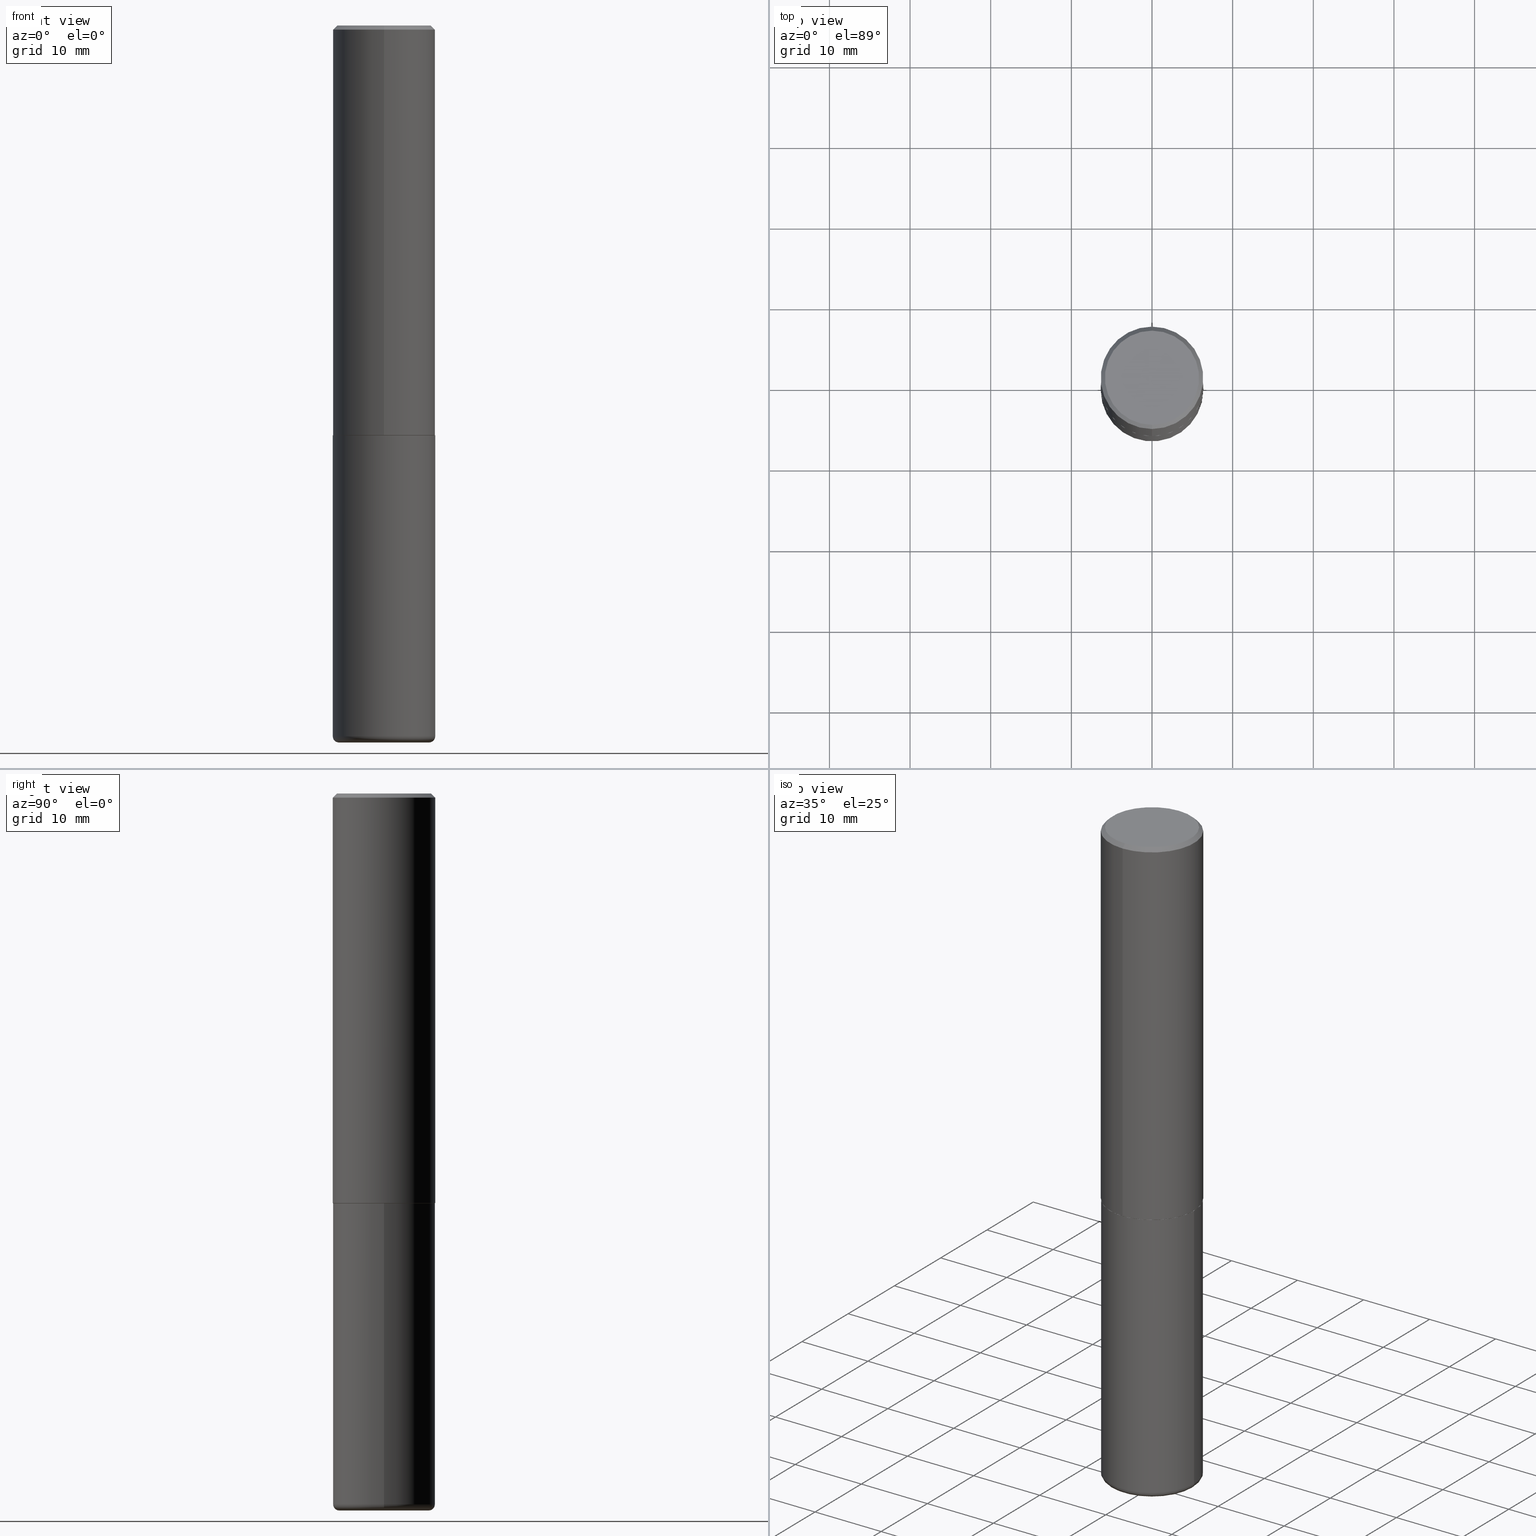
[diagram: canonical four-view strip — front | top / right | iso, engineering-drawing reading convention]
A machine part, canonical four-view strip (front | top / right | iso — engineering-drawing reading convention). The complete STEP part file that produces these views, byte-faithful:
ISO-10303-21;
HEADER;
FILE_DESCRIPTION (( 'STEP AP203' ),
    '1' );
FILE_NAME ('77356.STEP',
    '2024-05-02T19:31:31',
    ( '' ),
    ( '' ),
    'SwSTEP 2.0',
    'SolidWorks 2023',
    '' );
FILE_SCHEMA (( 'CONFIG_CONTROL_DESIGN' ));
ENDSEC;

DATA;
#1 = CARTESIAN_POINT ( 'NONE',  ( 0.2200000000000000011, -1.365169203487669276E-14, -3.469999999999999751 ) ) ;
#2 = DIRECTION ( 'NONE',  ( 2.444078991372175283E-29, -3.493471632758652550E-15, -1.000000000000000000 ) ) ;
#3 = ORIENTED_EDGE ( 'NONE', *, *, #232, .F. ) ;
#4 = FACE_OUTER_BOUND ( 'NONE', #257, .T. ) ;
#5 = APPROVAL_DATE_TIME ( #170, #384 ) ;
#6 = AXIS2_PLACEMENT_3D ( 'NONE', #338, #182, #274 ) ;
#7 = PERSON_AND_ORGANIZATION ( #239, #183 ) ;
#8 = APPROVAL_PERSON_ORGANIZATION ( #396, #345, #105 ) ;
#9 = CYLINDRICAL_SURFACE ( 'NONE', #323, 0.2500000000000001110 ) ;
#10 = PRODUCT_DEFINITION ( 'UNKNOWN', '', #52, #90 ) ;
#11 = SECURITY_CLASSIFICATION_LEVEL ( 'unclassified' ) ;
#12 = PERSON_AND_ORGANIZATION ( #239, #183 ) ;
#13 = DIRECTION ( 'NONE',  ( -6.982962677686265133E-15, -1.000000000000000000, 3.500180241882336472E-15 ) ) ;
#14 = ADVANCED_FACE ( 'NONE', ( #104 ), #119, .T. ) ;
#15 = DATE_AND_TIME ( #241, #35 ) ;
#16 = CIRCLE ( 'NONE', #259, 0.2500000000000000555 ) ;
#17 = FACE_OUTER_BOUND ( 'NONE', #253, .T. ) ;
#18 = VERTEX_POINT ( 'NONE', #140 ) ;
#19 = CARTESIAN_POINT ( 'NONE',  ( -0.2499999999999998612, -1.033908340638546551E-14, -3.469999999999999751 ) ) ;
#20 = CARTESIAN_POINT ( 'NONE',  ( 0.2500000000000000000, -8.728703347107857054E-15, -2.000000000000000000 ) ) ;
#21 = AXIS2_PLACEMENT_3D ( 'NONE', #301, #145, #46 ) ;
#22 = AXIS2_PLACEMENT_3D ( 'NONE', #198, #293, #314 ) ;
#23 = EDGE_CURVE ( 'NONE', #88, #288, #275, .T. ) ;
#24 = DIRECTION ( 'NONE',  ( -6.982962677686265922E-15, -1.000000000000000000, 3.493471632758652550E-15 ) ) ;
#25 = DIRECTION ( 'NONE',  ( -1.000000000000000000, 6.982962677686265922E-15, -4.876176775795935793E-29 ) ) ;
#26 = EDGE_LOOP ( 'NONE', ( #282, #285, #302, #393 ) ) ;
#27 = CARTESIAN_POINT ( 'NONE',  ( 4.888157982744351127E-29, -6.986943265517304311E-15, -2.000000000000000000 ) ) ;
#28 = AXIS2_PLACEMENT_3D ( 'NONE', #118, #78, #247 ) ;
#29 = ORIENTED_EDGE ( 'NONE', *, *, #65, .T. ) ;
#30 = FACE_OUTER_BOUND ( 'NONE', #63, .T. ) ;
#31 = CARTESIAN_POINT ( 'NONE',  ( 4.888157982744351127E-29, -6.986943265517304311E-15, -2.000000000000000000 ) ) ;
#32 = VERTEX_POINT ( 'NONE', #175 ) ;
#33 = ORIENTED_EDGE ( 'NONE', *, *, #233, .T. ) ;
#34 = PERSON_AND_ORGANIZATION_ROLE ( 'classification_officer' ) ;
#35 = LOCAL_TIME ( 15, 31, 31.00000000000000000, #354 ) ;
#36 = PLANE ( 'NONE',  #318 ) ;
#37 = ORIENTED_EDGE ( 'NONE', *, *, #343, .T. ) ;
#38 = CALENDAR_DATE ( 2024, 2, 5 ) ;
#39 = DIRECTION ( 'NONE',  ( 1.000000000000000000, -6.982962677686269866E-15, 0.000000000000000000 ) ) ;
#40 = ORIENTED_EDGE ( 'NONE', *, *, #147, .T. ) ;
#41 = APPROVAL_STATUS ( 'not_yet_approved' ) ;
#42 = CC_DESIGN_PERSON_AND_ORGANIZATION_ASSIGNMENT ( #12, #240, ( #387 ) ) ;
#43 = PERSON_AND_ORGANIZATION_ROLE ( 'creator' ) ;
#44 = DIRECTION ( 'NONE',  ( -2.444078991372175563E-29, 3.493471632758652550E-15, 1.000000000000000000 ) ) ;
#45 = CALENDAR_DATE ( 2024, 2, 5 ) ;
#46 = DIRECTION ( 'NONE',  ( 1.000000000000000000, -6.982962677686270655E-15, 4.883557194083114583E-29 ) ) ;
#47 = ORIENTED_EDGE ( 'NONE', *, *, #23, .T. ) ;
#48 = CARTESIAN_POINT ( 'NONE',  ( 1.462890209737923333E-28, -3.527941069746530409E-15, -3.499999999999999112 ) ) ;
#49 = EDGE_LOOP ( 'NONE', ( #245, #110, #128, #401 ) ) ;
#50 = CYLINDRICAL_SURFACE ( 'NONE', #237, 0.2500000000000000000 ) ;
#51 = DIRECTION ( 'NONE',  ( 1.000000000000000000, -6.982962677686262766E-15, 0.000000000000000000 ) ) ;
#52 = PRODUCT_DEFINITION_FORMATION_WITH_SPECIFIED_SOURCE ( 'ANY', '', #387, .NOT_KNOWN. ) ;
#53 = CARTESIAN_POINT ( 'NONE',  ( 8.485776757462424574E-29, -1.211544024578571439E-14, -3.469999999999999751 ) ) ;
#54 = EDGE_CURVE ( 'NONE', #18, #32, #94, .T. ) ;
#55 = CARTESIAN_POINT ( 'NONE',  ( -1.738757706743831360E-15, -0.2490000000000069935, -1.999999999999999112 ) ) ;
#56 = PLANE ( 'NONE',  #136 ) ;
#57 = CONICAL_SURFACE ( 'NONE', #418, 0.2500000000000000555, 0.7853981633974466137 ) ;
#58 = CARTESIAN_POINT ( 'NONE',  ( 4.888157982744351127E-29, -6.986943265517304311E-15, -2.000000000000000000 ) ) ;
#59 =( CONVERSION_BASED_UNIT ( 'INCH', #256 ) LENGTH_UNIT ( ) NAMED_UNIT ( #206 ) );
#60 = CALENDAR_DATE ( 2024, 2, 5 ) ;
#61 = DIRECTION ( 'NONE',  ( -2.444078991372175283E-29, 3.493471632758652550E-15, 1.000000000000000000 ) ) ;
#62 = DIRECTION ( 'NONE',  ( 6.982962677686265133E-15, 1.000000000000000000, -3.500180241882336472E-15 ) ) ;
#63 = EDGE_LOOP ( 'NONE', ( #146, #98, #83, #150 ) ) ;
#64 = ADVANCED_FACE ( 'NONE', ( #17 ), #234, .T. ) ;
#65 = EDGE_CURVE ( 'NONE', #292, #368, #159, .T. ) ;
#66 = APPROVAL_STATUS ( 'not_yet_approved' ) ;
#67 = DIRECTION ( 'NONE',  ( 1.000000000000000000, 0.000000000000000000, 0.000000000000000000 ) ) ;
#68 = CC_DESIGN_APPROVAL ( #384, ( #103 ) ) ;
#69 = DIRECTION ( 'NONE',  ( -6.982962677686266711E-15, -1.000000000000000000, 3.493471632758652550E-15 ) ) ;
#70 = CC_DESIGN_PERSON_AND_ORGANIZATION_ASSIGNMENT ( #320, #34, ( #103 ) ) ;
#71 = FACE_OUTER_BOUND ( 'NONE', #123, .T. ) ;
#72 = ORIENTED_EDGE ( 'NONE', *, *, #372, .F. ) ;
#73 = AXIS2_PLACEMENT_3D ( 'NONE', #332, #173, #392 ) ;
#74 = ADVANCED_FACE ( 'NONE', ( #71 ), #9, .T. ) ;
#75 = ORIENTED_EDGE ( 'NONE', *, *, #125, .F. ) ;
#76 = EDGE_CURVE ( 'NONE', #133, #288, #400, .T. ) ;
#77 = CYLINDRICAL_SURFACE ( 'NONE', #28, 0.2500000000000000000 ) ;
#78 = DIRECTION ( 'NONE',  ( -2.445468806185136597E-29, 3.491481338843145583E-15, 1.000000000000000000 ) ) ;
#79 = DIRECTION ( 'NONE',  ( -2.444078991372175563E-29, 3.493471632758652550E-15, 1.000000000000000000 ) ) ;
#80 = CLOSED_SHELL ( 'NONE', ( #188, #413, #200, #149, #14, #64 ) ) ;
#81 = EDGE_CURVE ( 'NONE', #194, #330, #16, .T. ) ;
#82 = FACE_OUTER_BOUND ( 'NONE', #26, .T. ) ;
#83 = ORIENTED_EDGE ( 'NONE', *, *, #217, .F. ) ;
#84 = DIRECTION ( 'NONE',  ( -2.445468806185136597E-29, 3.491481338843145583E-15, 1.000000000000000000 ) ) ;
#85 = UNCERTAINTY_MEASURE_WITH_UNIT (LENGTH_MEASURE( 1.000000000000000082E-05 ), #59, 'distance_accuracy_value', 'NONE');
#86 = VERTEX_POINT ( 'NONE', #142 ) ;
#87 = CARTESIAN_POINT ( 'NONE',  ( 0.000000000000000000, 0.000000000000000000, 0.000000000000000000 ) ) ;
#88 = VERTEX_POINT ( 'NONE', #20 ) ;
#89 = CARTESIAN_POINT ( 'NONE',  ( 8.559140821647976968E-29, -1.222018468595100619E-14, -3.499999999999999112 ) ) ;
#90 = DESIGN_CONTEXT ( 'detailed design', #386, 'design' ) ;
#91 =( LENGTH_UNIT ( ) NAMED_UNIT ( * ) SI_UNIT ( $, .METRE. ) );
#92 = EDGE_CURVE ( 'NONE', #178, #179, #366, .T. ) ;
#93 = ORIENTED_EDGE ( 'NONE', *, *, #343, .F. ) ;
#94 = CIRCLE ( 'NONE', #143, 0.2200000000000000011 ) ;
#95 = COORDINATED_UNIVERSAL_TIME_OFFSET ( 5, 0, .BEHIND. ) ;
#96 = VECTOR ( 'NONE', #151, 39.37007874015748143 ) ;
#97 = FACE_OUTER_BOUND ( 'NONE', #346, .T. ) ;
#98 = ORIENTED_EDGE ( 'NONE', *, *, #172, .T. ) ;
#99 = DIRECTION ( 'NONE',  ( 0.000000000000000000, 0.000000000000000000, 1.000000000000000000 ) ) ;
#100 = MECHANICAL_CONTEXT ( 'NONE', #272, 'mechanical' ) ;
#101 = DIRECTION ( 'NONE',  ( -1.000000000000000000, 6.982962677686265922E-15, -4.876176775795935793E-29 ) ) ;
#102 = APPROVAL_STATUS ( 'not_yet_approved' ) ;
#103 = SECURITY_CLASSIFICATION ( '', '', #11 ) ;
#104 = FACE_OUTER_BOUND ( 'NONE', #120, .T. ) ;
#105 = APPROVAL_ROLE ( '' ) ;
#106 = DIRECTION ( 'NONE',  ( -2.445468806185136597E-29, 3.491481338843145583E-15, 1.000000000000000000 ) ) ;
#107 = ORIENTED_EDGE ( 'NONE', *, *, #232, .T. ) ;
#108 = CARTESIAN_POINT ( 'NONE',  ( 4.888157982744373443E-31, -6.986943265517335816E-17, -0.02000000000000009062 ) ) ;
#109 = EDGE_CURVE ( 'NONE', #222, #88, #376, .T. ) ;
#110 = ORIENTED_EDGE ( 'NONE', *, *, #115, .T. ) ;
#111 = MANIFOLD_SOLID_BREP ( 'Body-Move/Copy2[1]', #80 ) ;
#112 = LOCAL_TIME ( 15, 31, 31.00000000000000000, #95 ) ;
#113 = DIRECTION ( 'NONE',  ( 7.105427357601001859E-15, 1.000000000000000000, -3.491481338843145583E-15 ) ) ;
#114 = DIRECTION ( 'NONE',  ( 1.000000000000000000, -6.982962677686266711E-15, 0.000000000000000000 ) ) ;
#115 = EDGE_CURVE ( 'NONE', #179, #368, #339, .T. ) ;
#116 = CARTESIAN_POINT ( 'NONE',  ( 4.890937612370273194E-29, -6.982962677686291165E-15, -2.000000000000000000 ) ) ;
#117 = CC_DESIGN_DATE_AND_TIME_ASSIGNMENT ( #138, #139, ( #10 ) ) ;
#118 = CARTESIAN_POINT ( 'NONE',  ( 0.000000000000000000, 0.000000000000000000, 0.000000000000000000 ) ) ;
#119 = TOROIDAL_SURFACE ( 'NONE', #21, 0.2200000000000000011, 0.02999999999999969705 ) ;
#120 = EDGE_LOOP ( 'NONE', ( #340, #167, #294, #187 ) ) ;
#121 = LINE ( 'NONE', #254, #96 ) ;
#122 = ORIENTED_EDGE ( 'NONE', *, *, #268, .F. ) ;
#123 = EDGE_LOOP ( 'NONE', ( #409, #379, #37, #322 ) ) ;
#124 = COORDINATED_UNIVERSAL_TIME_OFFSET ( 5, 0, .BEHIND. ) ;
#125 = EDGE_CURVE ( 'NONE', #86, #261, #176, .T. ) ;
#126 = CARTESIAN_POINT ( 'NONE',  ( 8.485776757462424574E-29, -1.211544024578571439E-14, -3.469999999999999751 ) ) ;
#127 = CIRCLE ( 'NONE', #356, 0.2500000000000000000 ) ;
#128 = ORIENTED_EDGE ( 'NONE', *, *, #65, .F. ) ;
#129 = CC_DESIGN_SECURITY_CLASSIFICATION ( #103, ( #52 ) ) ;
#130 = FACE_OUTER_BOUND ( 'NONE', #224, .T. ) ;
#131 = DATE_AND_TIME ( #60, #112 ) ;
#132 = EDGE_CURVE ( 'NONE', #368, #292, #389, .T. ) ;
#133 = VERTEX_POINT ( 'NONE', #19 ) ;
#134 = DIRECTION ( 'NONE',  ( 6.982962677686265922E-15, 1.000000000000000000, -3.493471632758652550E-15 ) ) ;
#135 = EDGE_LOOP ( 'NONE', ( #164, #40, #197, #209 ) ) ;
#136 = AXIS2_PLACEMENT_3D ( 'NONE', #405, #308, #25 ) ;
#137 = TOROIDAL_SURFACE ( 'NONE', #277, 0.2200000000000000011, 0.02999999999999969705 ) ;
#138 = DATE_AND_TIME ( #199, #238 ) ;
#139 = DATE_TIME_ROLE ( 'creation_date' ) ;
#140 = CARTESIAN_POINT ( 'NONE',  ( -0.2200000000000000011, -1.049803703683212653E-14, -3.499999999999999112 ) ) ;
#141 = APPLICATION_PROTOCOL_DEFINITION ( 'international standard', 'config_control_design', 1994, #272 ) ;
#142 = CARTESIAN_POINT ( 'NONE',  ( -1.646519519465166376E-15, -0.2299999999999997047, 1.115557654912385711E-15 ) ) ;
#143 = AXIS2_PLACEMENT_3D ( 'NONE', #270, #106, #362 ) ;
#144 = COORDINATED_UNIVERSAL_TIME_OFFSET ( 5, 0, .BEHIND. ) ;
#145 = DIRECTION ( 'NONE',  ( -2.445468806185136597E-29, 3.491481338843145583E-15, 1.000000000000000000 ) ) ;
#146 = ORIENTED_EDGE ( 'NONE', *, *, #372, .T. ) ;
#147 = EDGE_CURVE ( 'NONE', #133, #222, #127, .T. ) ;
#148 = DIRECTION ( 'NONE',  ( -6.982962677686265922E-15, -1.000000000000000000, 3.278217592397112312E-15 ) ) ;
#149 = ADVANCED_FACE ( 'NONE', ( #216 ), #50, .T. ) ;
#150 = ORIENTED_EDGE ( 'NONE', *, *, #325, .F. ) ;
#151 = DIRECTION ( 'NONE',  ( -2.444078991372175563E-29, 3.493471632758652550E-15, 1.000000000000000000 ) ) ;
#152 = CONICAL_SURFACE ( 'NONE', #22, 0.2500000000000000555, 0.7853981633974466137 ) ;
#153 = DIRECTION ( 'NONE',  ( -1.000000000000000000, 7.105427357600993970E-15, 0.000000000000000000 ) ) ;
#154 = CC_DESIGN_PERSON_AND_ORGANIZATION_ASSIGNMENT ( #171, #299, ( #52 ) ) ;
#155 = CARTESIAN_POINT ( 'NONE',  ( 1.769251412042697971E-15, 0.2489999999999930047, -2.000000000000000888 ) ) ;
#156 = DIRECTION ( 'NONE',  ( -6.982962677686265133E-15, -1.000000000000000000, 3.291383124896702687E-15 ) ) ;
#157 = ORIENTED_EDGE ( 'NONE', *, *, #251, .T. ) ;
#158 = CARTESIAN_POINT ( 'NONE',  ( 0.2500000000000000000, -1.745740669421566678E-15, 1.219044193948983948E-29 ) ) ;
#159 = CIRCLE ( 'NONE', #397, 0.2500000000000002776 ) ;
#160 = ORIENTED_EDGE ( 'NONE', *, *, #161, .T. ) ;
#161 = EDGE_CURVE ( 'NONE', #178, #292, #334, .T. ) ;
#162 = DIRECTION ( 'NONE',  ( 1.000000000000000000, -6.982962677686270655E-15, 4.883557194083114583E-29 ) ) ;
#163 = DIRECTION ( 'NONE',  ( -2.445468806185136597E-29, 3.491481338843145583E-15, 1.000000000000000000 ) ) ;
#164 = ORIENTED_EDGE ( 'NONE', *, *, #76, .F. ) ;
#165 = FACE_OUTER_BOUND ( 'NONE', #49, .T. ) ;
#166 = AXIS2_PLACEMENT_3D ( 'NONE', #412, #186, #51 ) ;
#167 = ORIENTED_EDGE ( 'NONE', *, *, #54, .T. ) ;
#168 = APPROVAL_PERSON_ORGANIZATION ( #352, #384, #263 ) ;
#169 = DIRECTION ( 'NONE',  ( -6.982962677686265133E-15, -1.000000000000000000, 3.291383124896702687E-15 ) ) ;
#170 = DATE_AND_TIME ( #38, #228 ) ;
#171 = PERSON_AND_ORGANIZATION ( #239, #183 ) ;
#172 = EDGE_CURVE ( 'NONE', #18, #133, #221, .T. ) ;
#173 = DIRECTION ( 'NONE',  ( -2.445468806185136597E-29, 3.491481338843145583E-15, 1.000000000000000000 ) ) ;
#174 = DATE_AND_TIME ( #45, #358 ) ;
#175 = CARTESIAN_POINT ( 'NONE',  ( 0.2200000000000000011, -1.375643647504198455E-14, -3.499999999999999112 ) ) ;
#176 = CIRCLE ( 'NONE', #328, 0.2299999999999997047 ) ;
#177 = AXIS2_PLACEMENT_3D ( 'NONE', #31, #61, #317 ) ;
#178 = VERTEX_POINT ( 'NONE', #278 ) ;
#179 = VERTEX_POINT ( 'NONE', #407 ) ;
#180 = CARTESIAN_POINT ( 'NONE',  ( 4.885713903752978284E-29, -6.983449793884546288E-15, -1.998999999999999888 ) ) ;
#181 = EDGE_LOOP ( 'NONE', ( #414, #229 ) ) ;
#182 = DIRECTION ( 'NONE',  ( -2.444078991372175563E-29, 3.493471632758652550E-15, 1.000000000000000000 ) ) ;
#183 = ORGANIZATION ( 'UNSPECIFIED', 'UNSPECIFIED', '' ) ;
#184 = CARTESIAN_POINT ( 'NONE',  ( 4.888157982744373443E-31, -6.986943265517335816E-17, -0.02000000000000009062 ) ) ;
#185 = DIRECTION ( 'NONE',  ( -2.445468806185136597E-29, 3.491481338843145583E-15, 1.000000000000000000 ) ) ;
#186 = DIRECTION ( 'NONE',  ( -2.445468806185136597E-29, 3.491481338843145583E-15, 1.000000000000000000 ) ) ;
#187 = ORIENTED_EDGE ( 'NONE', *, *, #147, .F. ) ;
#188 = ADVANCED_FACE ( 'NONE', ( #82 ), #77, .T. ) ;
#189 = CARTESIAN_POINT ( 'NONE',  ( 1.606081415867839095E-15, 0.2299999999999997047, -6.474688858455407103E-16 ) ) ;
#190 = CIRCLE ( 'NONE', #243, 0.2500000000000000000 ) ;
#191 = AXIS2_PLACEMENT_3D ( 'NONE', #390, #258, #290 ) ;
#192 = CARTESIAN_POINT ( 'NONE',  ( -1.715124499442882496E-15, -0.2500000000000001110, -0.01999999999999921632 ) ) ;
#193 = DIRECTION ( 'NONE',  ( -2.444078991372175563E-29, 3.493471632758652550E-15, 1.000000000000000000 ) ) ;
#194 = VERTEX_POINT ( 'NONE', #341 ) ;
#195 = CARTESIAN_POINT ( 'NONE',  ( 1.776356839400276103E-15, 0.2499999999999932832, -1.999000000000000776 ) ) ;
#196 = CLOSED_SHELL ( 'NONE', ( #363, #377, #348, #289, #74, #280, #370, #406 ) ) ;
#197 = ORIENTED_EDGE ( 'NONE', *, *, #109, .T. ) ;
#198 = CARTESIAN_POINT ( 'NONE',  ( 4.888157982744373443E-31, -6.986943265517335816E-17, -0.02000000000000009062 ) ) ;
#199 = CALENDAR_DATE ( 2024, 2, 5 ) ;
#200 = ADVANCED_FACE ( 'NONE', ( #218 ), #56, .F. ) ;
#201 = VECTOR ( 'NONE', #211, 39.37007874015748854 ) ;
#202 =( NAMED_UNIT ( * ) SI_UNIT ( $, .STERADIAN. ) SOLID_ANGLE_UNIT ( ) );
#203 = CARTESIAN_POINT ( 'NONE',  ( -0.2500000000000000000, 1.776356839400250465E-15, -1.229733772563726445E-29 ) ) ;
#204 = COORDINATED_UNIVERSAL_TIME_OFFSET ( 5, 0, .BEHIND. ) ;
#205 = EDGE_CURVE ( 'NONE', #288, #88, #190, .T. ) ;
#206 = DIMENSIONAL_EXPONENTS ( 1.000000000000000000, 0.000000000000000000, 0.000000000000000000, 0.000000000000000000, 0.000000000000000000, 0.000000000000000000, 0.000000000000000000 ) ;
#207 = AXIS2_PLACEMENT_3D ( 'NONE', #284, #113, #153 ) ;
#208 = CIRCLE ( 'NONE', #398, 0.02999999999999971440 ) ;
#209 = ORIENTED_EDGE ( 'NONE', *, *, #205, .F. ) ;
#210 = ADVANCED_BREP_SHAPE_REPRESENTATION ( '77356', ( #111, #385, #410 ), #329 ) ;
#211 = DIRECTION ( 'NONE',  ( 4.937700262164538576E-15, 0.7071067811865437980, -0.7071067811865511255 ) ) ;
#212 = CARTESIAN_POINT ( 'NONE',  ( 0.2499999999999998612, -1.386118091520728107E-14, -3.469999999999999751 ) ) ;
#213 = VECTOR ( 'NONE', #371, 39.37007874015748143 ) ;
#214 = CIRCLE ( 'NONE', #367, 0.2500000000000000555 ) ;
#215 = DIRECTION ( 'NONE',  ( -2.444078991372175563E-29, 3.493471632758652550E-15, 1.000000000000000000 ) ) ;
#216 = FACE_OUTER_BOUND ( 'NONE', #135, .T. ) ;
#217 = EDGE_CURVE ( 'NONE', #222, #133, #336, .T. ) ;
#218 = FACE_OUTER_BOUND ( 'NONE', #235, .T. ) ;
#219 = ORIENTED_EDGE ( 'NONE', *, *, #268, .T. ) ;
#220 = FACE_OUTER_BOUND ( 'NONE', #365, .T. ) ;
#221 = CIRCLE ( 'NONE', #207, 0.02999999999999971440 ) ;
#222 = VERTEX_POINT ( 'NONE', #212 ) ;
#223 = DIRECTION ( 'NONE',  ( -2.445468806185136597E-29, 3.491481338843145583E-15, 1.000000000000000000 ) ) ;
#224 = EDGE_LOOP ( 'NONE', ( #75, #33, #107, #122 ) ) ;
#225 = DIRECTION ( 'NONE',  ( -2.444078991372175563E-29, 3.493471632758652550E-15, 1.000000000000000000 ) ) ;
#226 = PRODUCT_DEFINITION_SHAPE ( 'NONE', 'NONE',  #10 ) ;
#227 = LINE ( 'NONE', #349, #305 ) ;
#228 = LOCAL_TIME ( 15, 31, 31.00000000000000000, #124 ) ;
#229 = ORIENTED_EDGE ( 'NONE', *, *, #125, .T. ) ;
#230 = DATE_TIME_ROLE ( 'classification_date' ) ;
#231 = CYLINDRICAL_SURFACE ( 'NONE', #391, 0.2500000000000001110 ) ;
#232 = EDGE_CURVE ( 'NONE', #330, #194, #214, .T. ) ;
#233 = EDGE_CURVE ( 'NONE', #86, #330, #303, .T. ) ;
#234 = PLANE ( 'NONE',  #380 ) ;
#235 = EDGE_LOOP ( 'NONE', ( #47, #242 ) ) ;
#236 = CARTESIAN_POINT ( 'NONE',  ( 0.000000000000000000, 0.000000000000000000, 0.000000000000000000 ) ) ;
#237 = AXIS2_PLACEMENT_3D ( 'NONE', #408, #185, #375 ) ;
#238 = LOCAL_TIME ( 15, 31, 31.00000000000000000, #204 ) ;
#239 = PERSON ( 'UNSPECIFIED', 'UNSPECIFIED', 'UNSPECIFIED', ('UNSPECIFIED'), ('UNSPECIFIED'), ('UNSPECIFIED') ) ;
#240 = PERSON_AND_ORGANIZATION_ROLE ( 'design_owner' ) ;
#241 = CALENDAR_DATE ( 2024, 2, 5 ) ;
#242 = ORIENTED_EDGE ( 'NONE', *, *, #205, .T. ) ;
#243 = AXIS2_PLACEMENT_3D ( 'NONE', #116, #333, #114 ) ;
#244 = CC_DESIGN_APPROVAL ( #331, ( #52 ) ) ;
#245 = ORIENTED_EDGE ( 'NONE', *, *, #92, .T. ) ;
#246 = LINE ( 'NONE', #369, #201 ) ;
#247 = DIRECTION ( 'NONE',  ( 1.000000000000000000, -6.982962677686266711E-15, 4.876176775795935793E-29 ) ) ;
#248 = CARTESIAN_POINT ( 'NONE',  ( -1.715124499442882496E-15, -0.2500000000000001110, -0.01999999999999921632 ) ) ;
#249 = AXIS2_PLACEMENT_3D ( 'NONE', #27, #79, #156 ) ;
#250 = CIRCLE ( 'NONE', #312, 0.2489999999999999991 ) ;
#251 = EDGE_CURVE ( 'NONE', #368, #194, #121, .T. ) ;
#252 = DIRECTION ( 'NONE',  ( -2.444078991372175563E-29, 3.493471632758652550E-15, 1.000000000000000000 ) ) ;
#253 = EDGE_LOOP ( 'NONE', ( #72, #271 ) ) ;
#254 = CARTESIAN_POINT ( 'NONE',  ( 1.776356839400251254E-15, 0.2500000000000001110, -8.733679081896635319E-16 ) ) ;
#255 = ORIENTED_EDGE ( 'NONE', *, *, #81, .T. ) ;
#256 = LENGTH_MEASURE_WITH_UNIT ( LENGTH_MEASURE( 0.02539999999999999897 ), #91 );
#257 = EDGE_LOOP ( 'NONE', ( #29, #157, #3, #93 ) ) ;
#258 = DIRECTION ( 'NONE',  ( -2.444078991372175563E-29, 3.493471632758652550E-15, 1.000000000000000000 ) ) ;
#259 = AXIS2_PLACEMENT_3D ( 'NONE', #108, #44, #13 ) ;
#260 = APPROVAL_PERSON_ORGANIZATION ( #266, #331, #326 ) ;
#261 = VERTEX_POINT ( 'NONE', #402 ) ;
#262 = DIRECTION ( 'NONE',  ( -2.444078991372175563E-29, 3.493471632758652550E-15, 1.000000000000000000 ) ) ;
#263 = APPROVAL_ROLE ( '' ) ;
#264 = CARTESIAN_POINT ( 'NONE',  ( -0.2500000000000000000, -7.772844622335752710E-15, -2.000000000000000000 ) ) ;
#265 = PLANE ( 'NONE',  #177 ) ;
#266 = PERSON_AND_ORGANIZATION ( #239, #183 ) ;
#267 = APPLICATION_PROTOCOL_DEFINITION ( 'international standard', 'config_control_design', 1994, #386 ) ;
#268 = EDGE_CURVE ( 'NONE', #261, #194, #246, .T. ) ;
#269 = CC_DESIGN_APPROVAL ( #345, ( #10 ) ) ;
#270 = CARTESIAN_POINT ( 'NONE',  ( 8.559140821647976968E-29, -1.222018468595100619E-14, -3.499999999999999112 ) ) ;
#271 = ORIENTED_EDGE ( 'NONE', *, *, #54, .F. ) ;
#272 = APPLICATION_CONTEXT ( 'configuration controlled 3d designs of mechanical parts and assemblies' ) ;
#273 = CARTESIAN_POINT ( 'NONE',  ( 0.000000000000000000, 0.000000000000000000, 0.000000000000000000 ) ) ;
#274 = DIRECTION ( 'NONE',  ( -6.982962677686265922E-15, -1.000000000000000000, 3.278217592397112312E-15 ) ) ;
#275 = CIRCLE ( 'NONE', #73, 0.2500000000000000000 ) ;
#276 = EDGE_CURVE ( 'NONE', #261, #86, #404, .T. ) ;
#277 = AXIS2_PLACEMENT_3D ( 'NONE', #126, #223, #162 ) ;
#278 = CARTESIAN_POINT ( 'NONE',  ( -1.738757706743831360E-15, -0.2490000000000069935, -1.999999999999999112 ) ) ;
#279 = DIRECTION ( 'NONE',  ( -4.937700262165053702E-15, -0.7071067811866175168, 0.7071067811864775177 ) ) ;
#280 = ADVANCED_FACE ( 'NONE', ( #383 ), #381, .T. ) ;
#281 = DIRECTION ( 'NONE',  ( 1.000000000000000000, -6.982962677686262766E-15, 0.000000000000000000 ) ) ;
#282 = ORIENTED_EDGE ( 'NONE', *, *, #217, .T. ) ;
#283 = CONICAL_SURFACE ( 'NONE', #337, 0.2489999999999999991, 0.7853981633975507526 ) ;
#284 = CARTESIAN_POINT ( 'NONE',  ( -0.2200000000000000011, -1.055224622711349418E-14, -3.469999999999999751 ) ) ;
#285 = ORIENTED_EDGE ( 'NONE', *, *, #76, .T. ) ;
#286 = CARTESIAN_POINT ( 'NONE',  ( -1.745740669421519543E-15, -0.2500000000000072720, -1.998999999999999000 ) ) ;
#287 = DIRECTION ( 'NONE',  ( 1.000000000000000000, -6.982962677686262766E-15, 0.000000000000000000 ) ) ;
#288 = VERTEX_POINT ( 'NONE', #264 ) ;
#289 = ADVANCED_FACE ( 'NONE', ( #220 ), #57, .T. ) ;
#290 = DIRECTION ( 'NONE',  ( -6.982962677686265922E-15, -1.000000000000000000, 3.493471632758652550E-15 ) ) ;
#291 = VECTOR ( 'NONE', #373, 39.37007874015748854 ) ;
#292 = VERTEX_POINT ( 'NONE', #286 ) ;
#293 = DIRECTION ( 'NONE',  ( 2.444078991372175563E-29, -3.493471632758652550E-15, -1.000000000000000000 ) ) ;
#294 = ORIENTED_EDGE ( 'NONE', *, *, #325, .T. ) ;
#295 = SHAPE_DEFINITION_REPRESENTATION ( #226, #210 ) ;
#296 = CARTESIAN_POINT ( 'NONE',  ( 4.888157982744373443E-31, -6.986943265517335816E-17, -0.02000000000000009062 ) ) ;
#297 = APPROVAL_DATE_TIME ( #15, #345 ) ;
#298 = AXIS2_PLACEMENT_3D ( 'NONE', #321, #415, #382 ) ;
#299 = PERSON_AND_ORGANIZATION_ROLE ( 'design_supplier' ) ;
#300 = PERSON_AND_ORGANIZATION ( #239, #183 ) ;
#301 = CARTESIAN_POINT ( 'NONE',  ( 8.485776757462424574E-29, -1.211544024578571439E-14, -3.469999999999999751 ) ) ;
#302 = ORIENTED_EDGE ( 'NONE', *, *, #23, .F. ) ;
#303 = LINE ( 'NONE', #248, #291 ) ;
#304 = DIRECTION ( 'NONE',  ( 5.024295867788576727E-15, 0.7071067811866224018, 0.7071067811864726327 ) ) ;
#305 = VECTOR ( 'NONE', #193, 39.37007874015748143 ) ;
#306 = DIRECTION ( 'NONE',  ( -6.982962677686265133E-15, -1.000000000000000000, 3.500180241882336472E-15 ) ) ;
#307 = CC_DESIGN_PERSON_AND_ORGANIZATION_ASSIGNMENT ( #7, #359, ( #10 ) ) ;
#308 = DIRECTION ( 'NONE',  ( 2.438088387897960049E-29, -3.491481338843145188E-15, -1.000000000000000000 ) ) ;
#309 = CARTESIAN_POINT ( 'NONE',  ( -7.626972843823584403E-45, 1.090169890898625670E-30, 3.120591793778966343E-16 ) ) ;
#310 = ORIENTED_EDGE ( 'NONE', *, *, #276, .F. ) ;
#311 = VECTOR ( 'NONE', #279, 39.37007874015748143 ) ;
#312 = AXIS2_PLACEMENT_3D ( 'NONE', #313, #347, #315 ) ;
#313 = CARTESIAN_POINT ( 'NONE',  ( 4.888157982744351127E-29, -6.986943265517304311E-15, -2.000000000000000000 ) ) ;
#314 = DIRECTION ( 'NONE',  ( 6.982962677686265133E-15, 1.000000000000000000, -3.500180241882336472E-15 ) ) ;
#315 = DIRECTION ( 'NONE',  ( -6.982962677686265133E-15, -1.000000000000000000, 3.291383124896702687E-15 ) ) ;
#316 = ORIENTED_EDGE ( 'NONE', *, *, #411, .T. ) ;
#317 = DIRECTION ( 'NONE',  ( -6.982962677686265922E-15, -1.000000000000000000, 3.493471632758652550E-15 ) ) ;
#318 = AXIS2_PLACEMENT_3D ( 'NONE', #189, #2, #134 ) ;
#319 = ORIENTED_EDGE ( 'NONE', *, *, #411, .F. ) ;
#320 = PERSON_AND_ORGANIZATION ( #239, #183 ) ;
#321 = CARTESIAN_POINT ( 'NONE',  ( 4.888157982744351127E-29, -6.986943265517304311E-15, -2.000000000000000000 ) ) ;
#322 = ORIENTED_EDGE ( 'NONE', *, *, #81, .F. ) ;
#323 = AXIS2_PLACEMENT_3D ( 'NONE', #273, #357, #69 ) ;
#324 = DIRECTION ( 'NONE',  ( -2.445468806185136877E-29, 3.491481338843145188E-15, 1.000000000000000000 ) ) ;
#325 = EDGE_CURVE ( 'NONE', #32, #222, #208, .T. ) ;
#326 = APPROVAL_ROLE ( '' ) ;
#327 = ORIENTED_EDGE ( 'NONE', *, *, #115, .F. ) ;
#328 = AXIS2_PLACEMENT_3D ( 'NONE', #309, #252, #24 ) ;
#329 =( GEOMETRIC_REPRESENTATION_CONTEXT ( 3 ) GLOBAL_UNCERTAINTY_ASSIGNED_CONTEXT ( ( #85 ) ) GLOBAL_UNIT_ASSIGNED_CONTEXT ( ( #59, #355, #202 ) ) REPRESENTATION_CONTEXT ( 'NONE', 'WORKASPACE' ) );
#330 = VERTEX_POINT ( 'NONE', #192 ) ;
#331 = APPROVAL ( #66, 'UNSPECIFIED' ) ;
#332 = CARTESIAN_POINT ( 'NONE',  ( 4.890937612370273194E-29, -6.982962677686291165E-15, -2.000000000000000000 ) ) ;
#333 = DIRECTION ( 'NONE',  ( -2.445468806185136597E-29, 3.491481338843145583E-15, 1.000000000000000000 ) ) ;
#334 = LINE ( 'NONE', #55, #311 ) ;
#335 = PRODUCT_RELATED_PRODUCT_CATEGORY ( 'detail', '', ( #387 ) ) ;
#336 = CIRCLE ( 'NONE', #166, 0.2500000000000000000 ) ;
#337 = AXIS2_PLACEMENT_3D ( 'NONE', #58, #262, #169 ) ;
#338 = CARTESIAN_POINT ( 'NONE',  ( 4.885713903752978284E-29, -6.983449793884546288E-15, -1.998999999999999888 ) ) ;
#339 = LINE ( 'NONE', #155, #417 ) ;
#340 = ORIENTED_EDGE ( 'NONE', *, *, #172, .F. ) ;
#341 = CARTESIAN_POINT ( 'NONE',  ( 1.745740669421567269E-15, 0.2499999999999999722, -0.02000000000000096492 ) ) ;
#342 = ORIENTED_EDGE ( 'NONE', *, *, #92, .F. ) ;
#343 = EDGE_CURVE ( 'NONE', #292, #330, #227, .T. ) ;
#344 = DIRECTION ( 'NONE',  ( 2.444078991372175563E-29, -3.493471632758652550E-15, -1.000000000000000000 ) ) ;
#345 = APPROVAL ( #102, 'UNSPECIFIED' ) ;
#346 = EDGE_LOOP ( 'NONE', ( #342, #319 ) ) ;
#347 = DIRECTION ( 'NONE',  ( -2.444078991372175563E-29, 3.493471632758652550E-15, 1.000000000000000000 ) ) ;
#348 = ADVANCED_FACE ( 'NONE', ( #130 ), #152, .T. ) ;
#349 = CARTESIAN_POINT ( 'NONE',  ( -1.745740669421567467E-15, -0.2500000000000001110, 8.733679081896635319E-16 ) ) ;
#350 = AXIS2_PLACEMENT_3D ( 'NONE', #89, #163, #287 ) ;
#351 = ORIENTED_EDGE ( 'NONE', *, *, #132, .F. ) ;
#352 = PERSON_AND_ORGANIZATION ( #239, #183 ) ;
#353 = FACE_OUTER_BOUND ( 'NONE', #181, .T. ) ;
#354 = COORDINATED_UNIVERSAL_TIME_OFFSET ( 5, 0, .BEHIND. ) ;
#355 =( NAMED_UNIT ( * ) PLANE_ANGLE_UNIT ( ) SI_UNIT ( $, .RADIAN. ) );
#356 = AXIS2_PLACEMENT_3D ( 'NONE', #53, #84, #281 ) ;
#357 = DIRECTION ( 'NONE',  ( -2.444078991372175563E-29, 3.493471632758652550E-15, 1.000000000000000000 ) ) ;
#358 = LOCAL_TIME ( 15, 31, 31.00000000000000000, #144 ) ;
#359 = PERSON_AND_ORGANIZATION_ROLE ( 'creator' ) ;
#360 = DIRECTION ( 'NONE',  ( -2.444078991372175563E-29, 3.493471632758652550E-15, 1.000000000000000000 ) ) ;
#361 = APPROVAL_DATE_TIME ( #174, #331 ) ;
#362 = DIRECTION ( 'NONE',  ( 1.000000000000000000, -6.982962677686262766E-15, 0.000000000000000000 ) ) ;
#363 = ADVANCED_FACE ( 'NONE', ( #165 ), #283, .T. ) ;
#364 = CC_DESIGN_PERSON_AND_ORGANIZATION_ASSIGNMENT ( #300, #43, ( #52 ) ) ;
#365 = EDGE_LOOP ( 'NONE', ( #378, #310, #219, #255 ) ) ;
#366 = CIRCLE ( 'NONE', #249, 0.2489999999999999991 ) ;
#367 = AXIS2_PLACEMENT_3D ( 'NONE', #184, #215, #306 ) ;
#368 = VERTEX_POINT ( 'NONE', #195 ) ;
#369 = CARTESIAN_POINT ( 'NONE',  ( 1.745740669421567269E-15, 0.2499999999999999722, -0.02000000000000096492 ) ) ;
#370 = ADVANCED_FACE ( 'NONE', ( #97 ), #265, .F. ) ;
#371 = DIRECTION ( 'NONE',  ( -2.445468806185136877E-29, 3.491481338843145188E-15, 1.000000000000000000 ) ) ;
#372 = EDGE_CURVE ( 'NONE', #32, #18, #374, .T. ) ;
#373 = DIRECTION ( 'NONE',  ( -4.851104656540954809E-15, -0.7071067811865486830, -0.7071067811865462405 ) ) ;
#374 = CIRCLE ( 'NONE', #350, 0.2200000000000000011 ) ;
#375 = DIRECTION ( 'NONE',  ( 1.000000000000000000, -6.982962677686266711E-15, 4.876176775795935793E-29 ) ) ;
#376 = LINE ( 'NONE', #158, #213 ) ;
#377 = ADVANCED_FACE ( 'NONE', ( #4 ), #231, .T. ) ;
#378 = ORIENTED_EDGE ( 'NONE', *, *, #233, .F. ) ;
#379 = ORIENTED_EDGE ( 'NONE', *, *, #132, .T. ) ;
#380 = AXIS2_PLACEMENT_3D ( 'NONE', #48, #395, #101 ) ;
#381 = CONICAL_SURFACE ( 'NONE', #298, 0.2489999999999999991, 0.7853981633975507526 ) ;
#382 = DIRECTION ( 'NONE',  ( -6.982962677686265133E-15, -1.000000000000000000, 3.291383124896702687E-15 ) ) ;
#383 = FACE_OUTER_BOUND ( 'NONE', #399, .T. ) ;
#384 = APPROVAL ( #41, 'UNSPECIFIED' ) ;
#385 = MANIFOLD_SOLID_BREP ( 'Body-Move/Copy2[2]', #196 ) ;
#386 = APPLICATION_CONTEXT ( 'configuration controlled 3d designs of mechanical parts and assemblies' ) ;
#387 = PRODUCT ( '77356', '77356', '', ( #100 ) ) ;
#388 = DIRECTION ( 'NONE',  ( -6.982962677686266711E-15, -1.000000000000000000, 3.491481338843145583E-15 ) ) ;
#389 = CIRCLE ( 'NONE', #6, 0.2500000000000002776 ) ;
#390 = CARTESIAN_POINT ( 'NONE',  ( -7.626972843823584403E-45, 1.090169890898625670E-30, 3.120591793778966343E-16 ) ) ;
#391 = AXIS2_PLACEMENT_3D ( 'NONE', #87, #225, #416 ) ;
#392 = DIRECTION ( 'NONE',  ( 1.000000000000000000, -6.982962677686266711E-15, 0.000000000000000000 ) ) ;
#393 = ORIENTED_EDGE ( 'NONE', *, *, #109, .F. ) ;
#394 = CC_DESIGN_DATE_AND_TIME_ASSIGNMENT ( #131, #230, ( #103 ) ) ;
#395 = DIRECTION ( 'NONE',  ( 2.438088387897960049E-29, -3.491481338843145188E-15, -1.000000000000000000 ) ) ;
#396 = PERSON_AND_ORGANIZATION ( #239, #183 ) ;
#397 = AXIS2_PLACEMENT_3D ( 'NONE', #180, #360, #148 ) ;
#398 = AXIS2_PLACEMENT_3D ( 'NONE', #1, #388, #39 ) ;
#399 = EDGE_LOOP ( 'NONE', ( #327, #316, #160, #351 ) ) ;
#400 = LINE ( 'NONE', #203, #403 ) ;
#401 = ORIENTED_EDGE ( 'NONE', *, *, #161, .F. ) ;
#402 = CARTESIAN_POINT ( 'NONE',  ( 1.675911042644703182E-15, 0.2299999999999997047, -4.914392961565924424E-16 ) ) ;
#403 = VECTOR ( 'NONE', #324, 39.37007874015748143 ) ;
#404 = CIRCLE ( 'NONE', #191, 0.2299999999999997047 ) ;
#405 = CARTESIAN_POINT ( 'NONE',  ( 4.890937612370273194E-29, -6.982962677686291165E-15, -2.000000000000000000 ) ) ;
#406 = ADVANCED_FACE ( 'NONE', ( #353 ), #36, .F. ) ;
#407 = CARTESIAN_POINT ( 'NONE',  ( 1.772804125721499462E-15, 0.2489999999999930047, -2.000000000000000888 ) ) ;
#408 = CARTESIAN_POINT ( 'NONE',  ( 0.000000000000000000, 0.000000000000000000, 0.000000000000000000 ) ) ;
#409 = ORIENTED_EDGE ( 'NONE', *, *, #251, .F. ) ;
#410 = AXIS2_PLACEMENT_3D ( 'NONE', #236, #99, #67 ) ;
#411 = EDGE_CURVE ( 'NONE', #179, #178, #250, .T. ) ;
#412 = CARTESIAN_POINT ( 'NONE',  ( 8.485776757462424574E-29, -1.211544024578571439E-14, -3.469999999999999751 ) ) ;
#413 = ADVANCED_FACE ( 'NONE', ( #30 ), #137, .T. ) ;
#414 = ORIENTED_EDGE ( 'NONE', *, *, #276, .T. ) ;
#415 = DIRECTION ( 'NONE',  ( -2.444078991372175563E-29, 3.493471632758652550E-15, 1.000000000000000000 ) ) ;
#416 = DIRECTION ( 'NONE',  ( -6.982962677686266711E-15, -1.000000000000000000, 3.493471632758652550E-15 ) ) ;
#417 = VECTOR ( 'NONE', #304, 39.37007874015748143 ) ;
#418 = AXIS2_PLACEMENT_3D ( 'NONE', #296, #344, #62 ) ;
ENDSEC;
END-ISO-10303-21;
